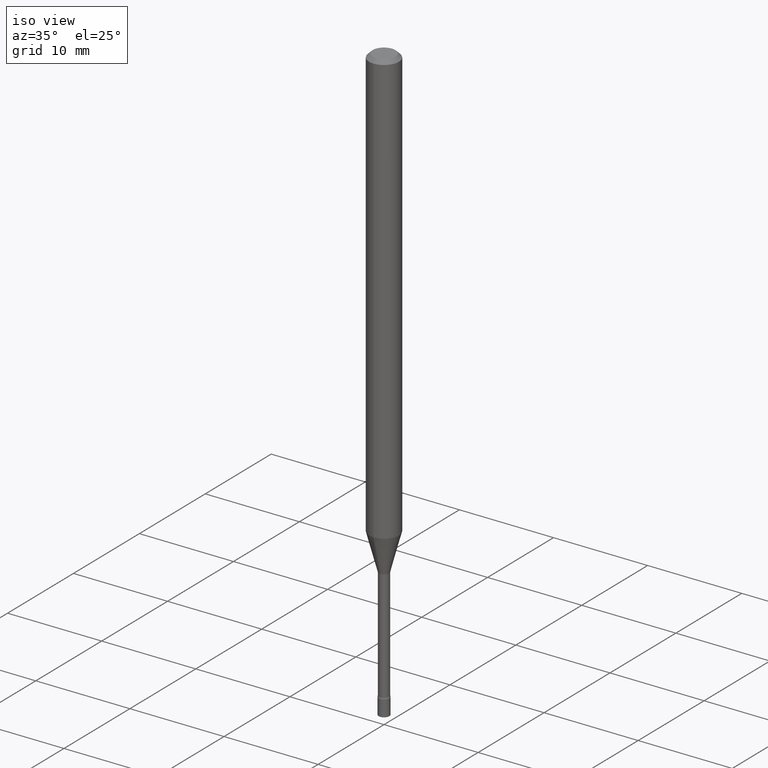
[diagram: clean part render]
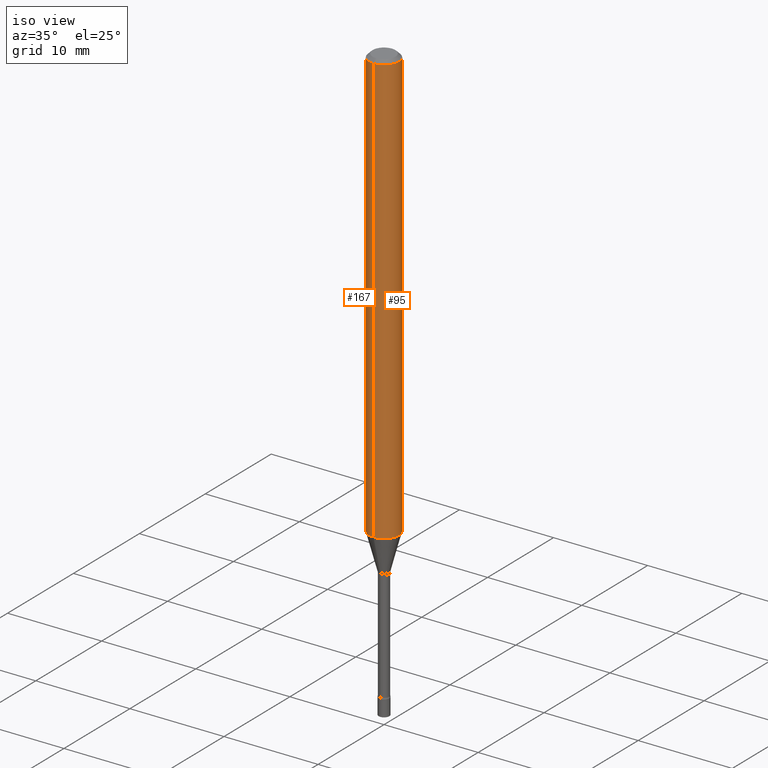
[diagram: same view with one multi-face feature highlighted, each face labeled with its STEP entity id]
A machine part, iso view. The highlighted faces form ONE feature: a constant-radius fillet chain: 2 tangent blend faces with common blend radius 1.5875 mm. The faces share edges in the B-rep.
Their STEP definitions:
[1] entity #95 (Cylinder):
#28 = DIRECTION ( 'NONE',  ( -2.445429312206103195E-29, 3.491537896468978830E-15, 1.000000000000000000 ) ) ;
#34 = CARTESIAN_POINT ( 'NONE',  ( 0.000000000000000000, 0.000000000000000000, 0.000000000000000000 ) ) ;
#41 = FACE_OUTER_BOUND ( 'NONE', #457, .T. ) ;
#53 = EDGE_CURVE ( 'NONE', #161, #453, #103, .T. ) ;
#71 = VERTEX_POINT ( 'NONE', #318 ) ;
#79 = ORIENTED_EDGE ( 'NONE', *, *, #238, .F. ) ;
#95 = ADVANCED_FACE ( 'NONE', ( #41 ), #439, .T. ) ;
#96 = ORIENTED_EDGE ( 'NONE', *, *, #53, .T. ) ;
#103 = CIRCLE ( 'NONE', #276, 0.06250000000000000000 ) ;
#105 = CARTESIAN_POINT ( 'NONE',  ( 3.668143968309162377E-31, -5.237306844703478624E-17, -0.01500000000000003067 ) ) ;
#127 = DIRECTION ( 'NONE',  ( -6.982962677686265922E-15, -1.000000000000000000, 3.491537896468978436E-15 ) ) ;
#136 = EDGE_CURVE ( 'NONE', #71, #197, #329, .T. ) ;
#146 = LINE ( 'NONE', #386, #297 ) ;
#161 = VERTEX_POINT ( 'NONE', #345 ) ;
#197 = VERTEX_POINT ( 'NONE', #208 ) ;
#199 = AXIS2_PLACEMENT_3D ( 'NONE', #105, #255, #264 ) ;
#208 = CARTESIAN_POINT ( 'NONE',  ( 4.440892098501069896E-16, 0.06249999999999995143, -0.01500000000000024751 ) ) ;
#238 = EDGE_CURVE ( 'NONE', #161, #71, #456, .T. ) ;
#255 = DIRECTION ( 'NONE',  ( -2.445429312206103475E-29, 3.491537896468978830E-15, 1.000000000000000000 ) ) ;
#264 = DIRECTION ( 'NONE',  ( -6.982962677686265922E-15, -1.000000000000000000, 3.483106191921935554E-15 ) ) ;
#276 = AXIS2_PLACEMENT_3D ( 'NONE', #310, #520, #280 ) ;
#280 = DIRECTION ( 'NONE',  ( -6.982962677686265922E-15, -1.000000000000000000, 4.370956789862821150E-15 ) ) ;
#293 = CARTESIAN_POINT ( 'NONE',  ( 4.440892098501065952E-16, 0.06249999999999367173, -1.805679699107027414 ) ) ;
#297 = VECTOR ( 'NONE', #28, 39.37007874015748143 ) ;
#305 = DIRECTION ( 'NONE',  ( -2.445429312206103195E-29, 3.491537896468978830E-15, 1.000000000000000000 ) ) ;
#310 = CARTESIAN_POINT ( 'NONE',  ( 4.415662064651821440E-29, -6.304599098316888834E-15, -1.805679699107027192 ) ) ;
#318 = CARTESIAN_POINT ( 'NONE',  ( -4.364351673553912750E-16, -0.06250000000000005551, -0.01499999999999981209 ) ) ;
#329 = CIRCLE ( 'NONE', #199, 0.06250000000000000000 ) ;
#340 = EDGE_CURVE ( 'NONE', #453, #197, #146, .T. ) ;
#345 = CARTESIAN_POINT ( 'NONE',  ( -4.364351673553475918E-16, -0.06250000000000632827, -1.805679699107026970 ) ) ;
#356 = VECTOR ( 'NONE', #305, 39.37007874015748143 ) ;
#382 = AXIS2_PLACEMENT_3D ( 'NONE', #34, #403, #127 ) ;
#386 = CARTESIAN_POINT ( 'NONE',  ( 4.440892098500625669E-16, 0.06250000000000000000, -2.182211185293111522E-16 ) ) ;
#395 = ORIENTED_EDGE ( 'NONE', *, *, #340, .T. ) ;
#403 = DIRECTION ( 'NONE',  ( -2.445429312206103475E-29, 3.491537896468978830E-15, 1.000000000000000000 ) ) ;
#439 = CYLINDRICAL_SURFACE ( 'NONE', #382, 0.06250000000000000000 ) ;
#451 = ORIENTED_EDGE ( 'NONE', *, *, #136, .F. ) ;
#453 = VERTEX_POINT ( 'NONE', #293 ) ;
#456 = LINE ( 'NONE', #506, #356 ) ;
#457 = EDGE_LOOP ( 'NONE', ( #96, #395, #451, #79 ) ) ;
#506 = CARTESIAN_POINT ( 'NONE',  ( -4.364351673553916201E-16, -0.06250000000000000000, 2.182211185293111522E-16 ) ) ;
#520 = DIRECTION ( 'NONE',  ( -2.445429312206103475E-29, 3.491537896468978830E-15, 1.000000000000000000 ) ) ;
[2] entity #167 (Cylinder):
#2 = AXIS2_PLACEMENT_3D ( 'NONE', #185, #353, #211 ) ;
#10 = ORIENTED_EDGE ( 'NONE', *, *, #340, .F. ) ;
#28 = DIRECTION ( 'NONE',  ( -2.445429312206103195E-29, 3.491537896468978830E-15, 1.000000000000000000 ) ) ;
#45 = CARTESIAN_POINT ( 'NONE',  ( 3.668143968309162377E-31, -5.237306844703478624E-17, -0.01500000000000003067 ) ) ;
#51 = EDGE_LOOP ( 'NONE', ( #10, #366, #274, #496 ) ) ;
#55 = DIRECTION ( 'NONE',  ( -2.445429312206103475E-29, 3.491537896468978830E-15, 1.000000000000000000 ) ) ;
#63 = DIRECTION ( 'NONE',  ( -6.982962677686265922E-15, -1.000000000000000000, 4.370956789862821150E-15 ) ) ;
#70 = AXIS2_PLACEMENT_3D ( 'NONE', #45, #445, #364 ) ;
#71 = VERTEX_POINT ( 'NONE', #318 ) ;
#106 = CARTESIAN_POINT ( 'NONE',  ( 4.415662064651821440E-29, -6.304599098316888834E-15, -1.805679699107027192 ) ) ;
#146 = LINE ( 'NONE', #386, #297 ) ;
#161 = VERTEX_POINT ( 'NONE', #345 ) ;
#167 = ADVANCED_FACE ( 'NONE', ( #474 ), #272, .T. ) ;
#185 = CARTESIAN_POINT ( 'NONE',  ( 0.000000000000000000, 0.000000000000000000, 0.000000000000000000 ) ) ;
#197 = VERTEX_POINT ( 'NONE', #208 ) ;
#208 = CARTESIAN_POINT ( 'NONE',  ( 4.440892098501069896E-16, 0.06249999999999995143, -0.01500000000000024751 ) ) ;
#211 = DIRECTION ( 'NONE',  ( -6.982962677686265922E-15, -1.000000000000000000, 3.491537896468978436E-15 ) ) ;
#238 = EDGE_CURVE ( 'NONE', #161, #71, #456, .T. ) ;
#242 = CIRCLE ( 'NONE', #298, 0.06250000000000000000 ) ;
#272 = CYLINDRICAL_SURFACE ( 'NONE', #2, 0.06250000000000000000 ) ;
#274 = ORIENTED_EDGE ( 'NONE', *, *, #238, .T. ) ;
#293 = CARTESIAN_POINT ( 'NONE',  ( 4.440892098501065952E-16, 0.06249999999999367173, -1.805679699107027414 ) ) ;
#297 = VECTOR ( 'NONE', #28, 39.37007874015748143 ) ;
#298 = AXIS2_PLACEMENT_3D ( 'NONE', #106, #55, #63 ) ;
#305 = DIRECTION ( 'NONE',  ( -2.445429312206103195E-29, 3.491537896468978830E-15, 1.000000000000000000 ) ) ;
#318 = CARTESIAN_POINT ( 'NONE',  ( -4.364351673553912750E-16, -0.06250000000000005551, -0.01499999999999981209 ) ) ;
#319 = EDGE_CURVE ( 'NONE', #453, #161, #242, .T. ) ;
#340 = EDGE_CURVE ( 'NONE', #453, #197, #146, .T. ) ;
#345 = CARTESIAN_POINT ( 'NONE',  ( -4.364351673553475918E-16, -0.06250000000000632827, -1.805679699107026970 ) ) ;
#353 = DIRECTION ( 'NONE',  ( -2.445429312206103475E-29, 3.491537896468978830E-15, 1.000000000000000000 ) ) ;
#355 = EDGE_CURVE ( 'NONE', #197, #71, #411, .T. ) ;
#356 = VECTOR ( 'NONE', #305, 39.37007874015748143 ) ;
#364 = DIRECTION ( 'NONE',  ( -6.982962677686265922E-15, -1.000000000000000000, 3.483106191921935554E-15 ) ) ;
#366 = ORIENTED_EDGE ( 'NONE', *, *, #319, .T. ) ;
#386 = CARTESIAN_POINT ( 'NONE',  ( 4.440892098500625669E-16, 0.06250000000000000000, -2.182211185293111522E-16 ) ) ;
#411 = CIRCLE ( 'NONE', #70, 0.06250000000000000000 ) ;
#445 = DIRECTION ( 'NONE',  ( -2.445429312206103475E-29, 3.491537896468978830E-15, 1.000000000000000000 ) ) ;
#453 = VERTEX_POINT ( 'NONE', #293 ) ;
#456 = LINE ( 'NONE', #506, #356 ) ;
#474 = FACE_OUTER_BOUND ( 'NONE', #51, .T. ) ;
#496 = ORIENTED_EDGE ( 'NONE', *, *, #355, .F. ) ;
#506 = CARTESIAN_POINT ( 'NONE',  ( -4.364351673553916201E-16, -0.06250000000000000000, 2.182211185293111522E-16 ) ) ;